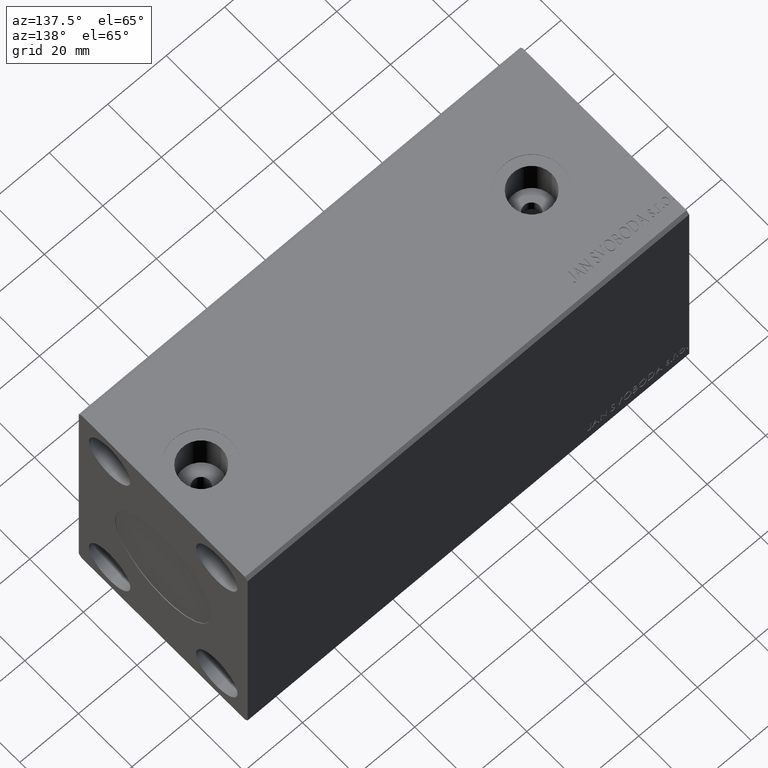
[diagram: clean part render]
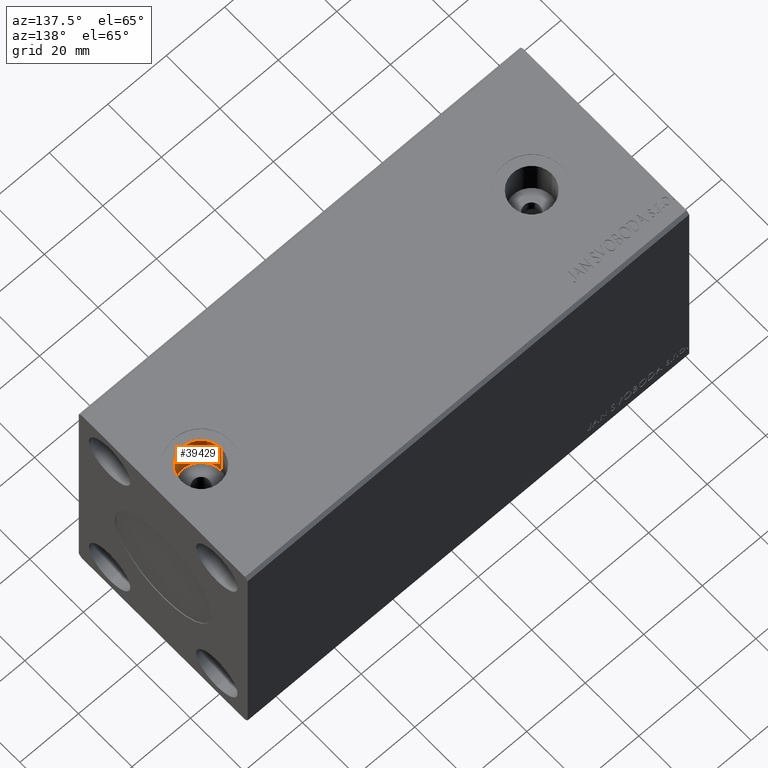
[diagram: same view with one face highlighted and labeled with its STEP entity id]
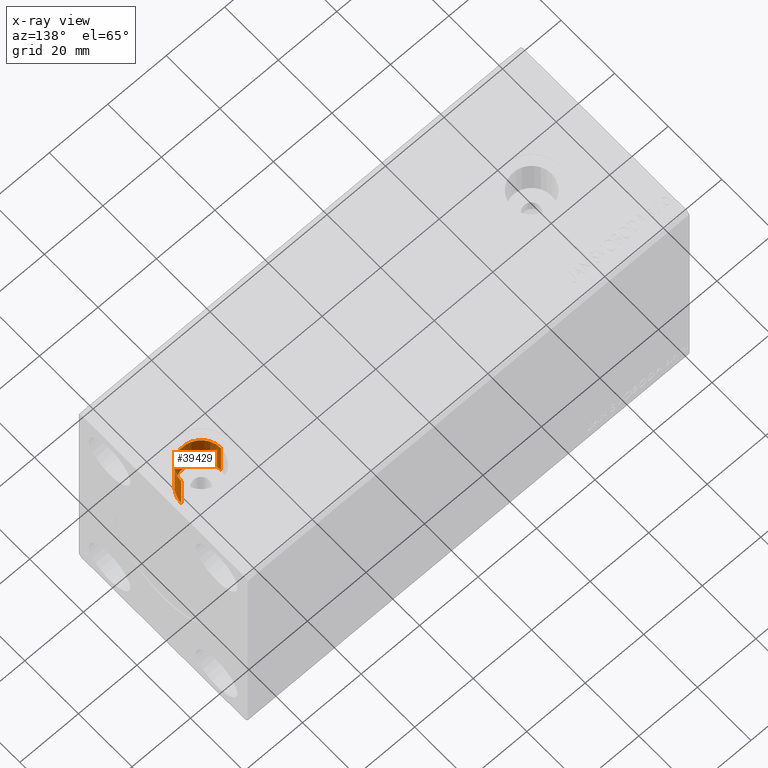
[diagram: x-ray of the same camera — body ghosted, the highlighted face saturated]
A machine part, auxiliary view. The second image highlights one B-rep face of the part: STEP entity #39429.
The next image is the same camera in x-ray: the body ghosted, the highlighted face saturated — about 0% of this face is hidden behind the body in this view.
In plain terms, the highlighted cylindrical surface (edge-blend (fillet) strip) has radius 6.8 mm, axis along (-0, -0, 1).
Its self-contained STEP definition (entity closure, byte-faithful):
#490 = AXIS2_PLACEMENT_3D ( 'NONE', #26110, #38958, #38752 ) ;
#845 = EDGE_CURVE ( 'NONE', #20771, #38544, #25607, .T. ) ;
#2030 = CARTESIAN_POINT ( 'NONE',  ( 144.8000000000000114, 0.000000000000000000, 42.39999999999999147 ) ) ;
#3037 = DIRECTION ( 'NONE',  ( -0.000000000000000000, -0.000000000000000000, 1.000000000000000000 ) ) ;
#4114 = ORIENTED_EDGE ( 'NONE', *, *, #24122, .F. ) ;
#4222 = DIRECTION ( 'NONE',  ( 0.000000000000000000, 0.000000000000000000, 1.000000000000000000 ) ) ;
#6498 = LINE ( 'NONE', #15942, #13941 ) ;
#6772 = EDGE_LOOP ( 'NONE', ( #16862, #6932, #28083, #4114 ) ) ;
#6932 = ORIENTED_EDGE ( 'NONE', *, *, #25785, .T. ) ;
#7124 = EDGE_CURVE ( 'NONE', #17558, #10756, #11611, .T. ) ;
#10120 = LINE ( 'NONE', #13559, #38554 ) ;
#10756 = VERTEX_POINT ( 'NONE', #2030 ) ;
#11591 = DIRECTION ( 'NONE',  ( 0.000000000000000000, 0.000000000000000000, 1.000000000000000000 ) ) ;
#11611 = CIRCLE ( 'NONE', #30766, 6.800000000000000711 ) ;
#13559 = CARTESIAN_POINT ( 'NONE',  ( 131.2000000000000171, 8.327598234201997174E-16, 29.23999999999999488 ) ) ;
#13941 = VECTOR ( 'NONE', #16157, 1000.000000000000000 ) ;
#15016 = CARTESIAN_POINT ( 'NONE',  ( 138.0000000000000000, 0.000000000000000000, 29.23999999999999488 ) ) ;
#15217 = DIRECTION ( 'NONE',  ( 1.000000000000000000, 0.000000000000000000, 0.000000000000000000 ) ) ;
#15629 = CYLINDRICAL_SURFACE ( 'NONE', #490, 6.800000000000000711 ) ;
#15942 = CARTESIAN_POINT ( 'NONE',  ( 144.8000000000000114, 0.000000000000000000, 29.23999999999999488 ) ) ;
#16157 = DIRECTION ( 'NONE',  ( -0.000000000000000000, -0.000000000000000000, 1.000000000000000000 ) ) ;
#16862 = ORIENTED_EDGE ( 'NONE', *, *, #845, .F. ) ;
#17558 = VERTEX_POINT ( 'NONE', #35036 ) ;
#20771 = VERTEX_POINT ( 'NONE', #29526 ) ;
#24122 = EDGE_CURVE ( 'NONE', #38544, #10756, #6498, .T. ) ;
#25607 = CIRCLE ( 'NONE', #32453, 6.800000000000000711 ) ;
#25785 = EDGE_CURVE ( 'NONE', #20771, #17558, #10120, .T. ) ;
#26110 = CARTESIAN_POINT ( 'NONE',  ( 138.0000000000000000, 0.000000000000000000, 29.23999999999999488 ) ) ;
#28083 = ORIENTED_EDGE ( 'NONE', *, *, #7124, .T. ) ;
#29526 = CARTESIAN_POINT ( 'NONE',  ( 131.2000000000000171, 8.327598234201995202E-16, 29.23999999999999488 ) ) ;
#30766 = AXIS2_PLACEMENT_3D ( 'NONE', #40227, #4222, #37214 ) ;
#32453 = AXIS2_PLACEMENT_3D ( 'NONE', #15016, #11591, #15217 ) ;
#35036 = CARTESIAN_POINT ( 'NONE',  ( 131.2000000000000171, 8.327598234201995202E-16, 42.39999999999999147 ) ) ;
#35323 = FACE_OUTER_BOUND ( 'NONE', #6772, .T. ) ;
#37214 = DIRECTION ( 'NONE',  ( 1.000000000000000000, 0.000000000000000000, 0.000000000000000000 ) ) ;
#38544 = VERTEX_POINT ( 'NONE', #41639 ) ;
#38554 = VECTOR ( 'NONE', #3037, 1000.000000000000000 ) ;
#38752 = DIRECTION ( 'NONE',  ( 1.000000000000000000, 0.000000000000000000, 0.000000000000000000 ) ) ;
#38958 = DIRECTION ( 'NONE',  ( -0.000000000000000000, -0.000000000000000000, 1.000000000000000000 ) ) ;
#39429 = ADVANCED_FACE ( 'NONE', ( #35323 ), #15629, .F. ) ;
#40227 = CARTESIAN_POINT ( 'NONE',  ( 138.0000000000000000, 0.000000000000000000, 42.39999999999999147 ) ) ;
#41639 = CARTESIAN_POINT ( 'NONE',  ( 144.8000000000000114, 0.000000000000000000, 29.23999999999999488 ) ) ;